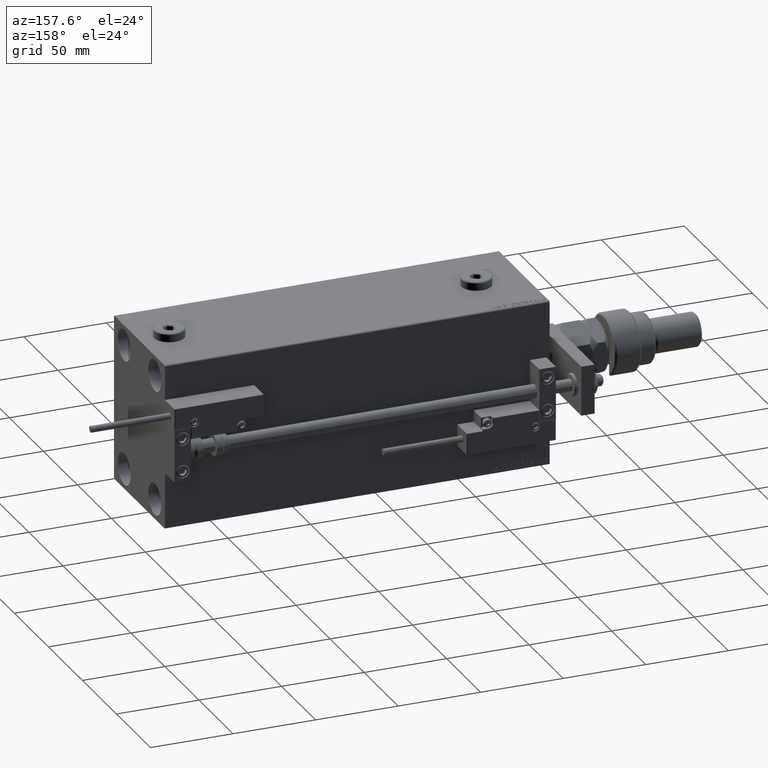
[diagram: clean part render]
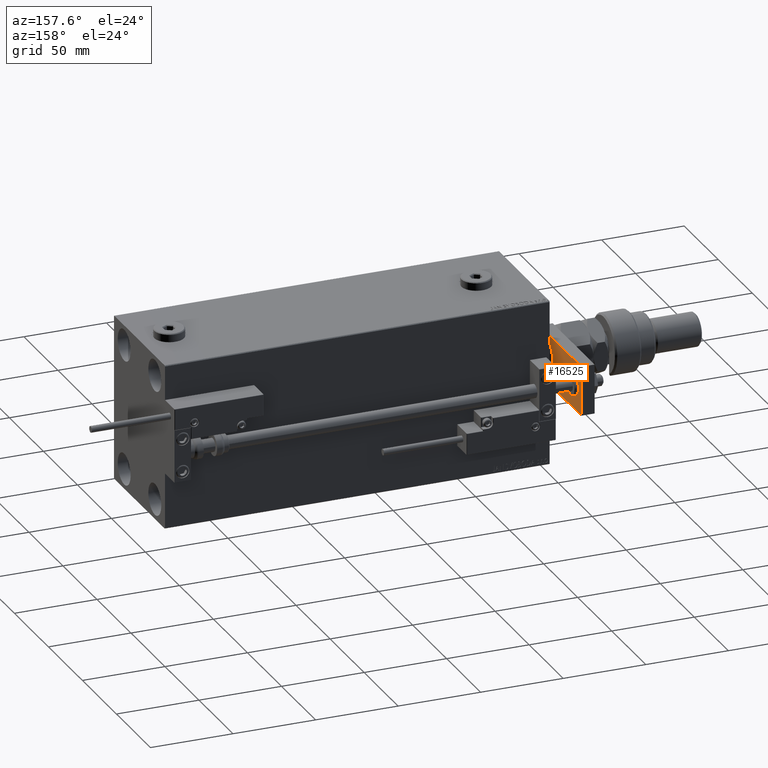
[diagram: same view with one face highlighted and labeled with its STEP entity id]
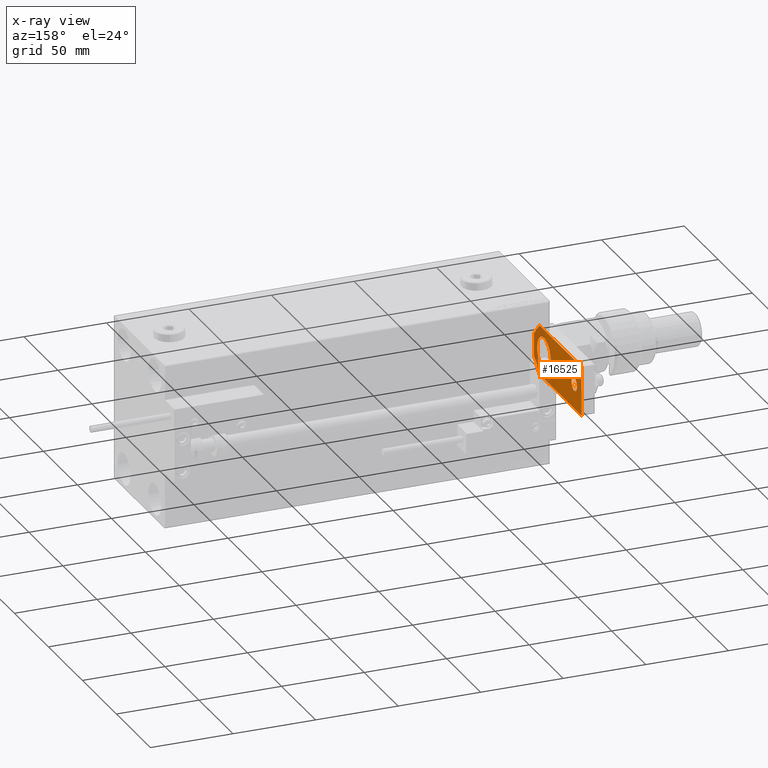
[diagram: x-ray of the same camera — body ghosted, the highlighted face saturated]
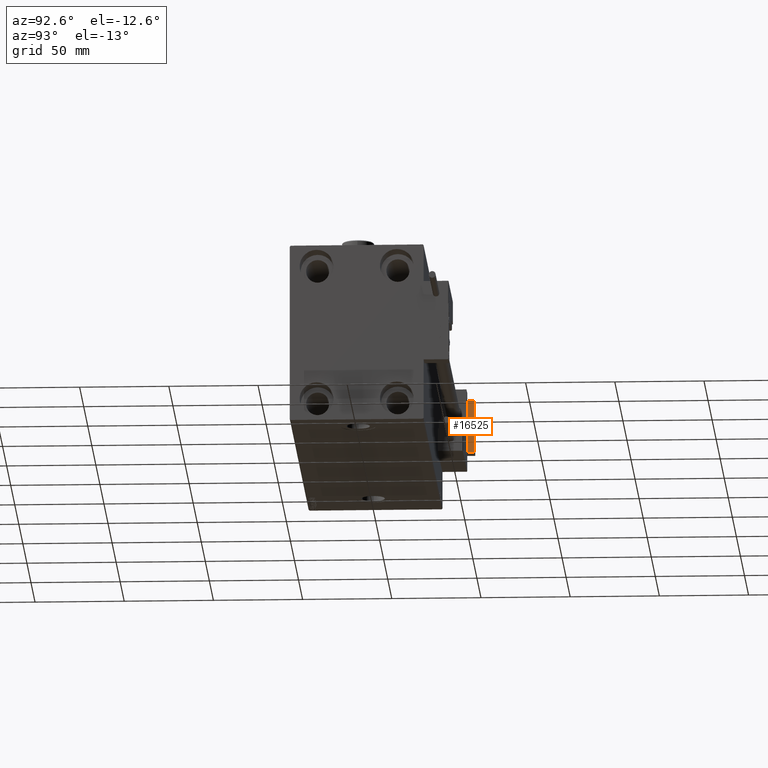
[diagram: same view with one face highlighted and labeled with its STEP entity id]
A machine part, auxiliary view. The second image highlights one B-rep face of the part: STEP entity #16525.
The next image is the same camera in x-ray: the body ghosted, the highlighted face saturated — about 22% of this face is hidden behind the body in this view.
A second angle (auxiliary view) of the same face is appended — the face is thin or edge-on in the first view.
In plain terms, the highlighted planar face has unit normal (-1, 0, 0).
Its self-contained STEP definition (entity closure, byte-faithful):
#328 = EDGE_CURVE ( 'NONE', #48121, #13491, #44241, .T. ) ;
#441 = CIRCLE ( 'NONE', #42696, 10.00000000000000178 ) ;
#972 = ORIENTED_EDGE ( 'NONE', *, *, #5919, .T. ) ;
#1374 = EDGE_CURVE ( 'NONE', #17687, #52299, #5810, .T. ) ;
#1536 = LINE ( 'NONE', #30764, #24697 ) ;
#2108 = CARTESIAN_POINT ( 'NONE',  ( 15.00000000000000000, 70.00000000000000000, 0.000000000000000000 ) ) ;
#2698 = FACE_BOUND ( 'NONE', #50340, .T. ) ;
#2765 = VERTEX_POINT ( 'NONE', #51920 ) ;
#3556 = CARTESIAN_POINT ( 'NONE',  ( -1.432611055310774642E-16, 59.50000000000001421, 0.000000000000000000 ) ) ;
#3947 = EDGE_CURVE ( 'NONE', #13491, #48121, #51385, .T. ) ;
#3962 = CARTESIAN_POINT ( 'NONE',  ( -6.499999999999993783, 0.000000000000000000, 0.000000000000000000 ) ) ;
#4166 = LINE ( 'NONE', #37798, #45336 ) ;
#5068 = CARTESIAN_POINT ( 'NONE',  ( 6.499999999999974243, 0.000000000000000000, 0.000000000000000000 ) ) ;
#5810 = LINE ( 'NONE', #9135, #29349 ) ;
#5919 = EDGE_CURVE ( 'NONE', #2765, #39416, #441, .T. ) ;
#6374 = LINE ( 'NONE', #7200, #44936 ) ;
#6833 = PLANE ( 'NONE',  #31568 ) ;
#6848 = CARTESIAN_POINT ( 'NONE',  ( -10.00000000000000178, 15.00000000000001066, 0.000000000000000000 ) ) ;
#7200 = CARTESIAN_POINT ( 'NONE',  ( -14.99999999999999822, 70.00000000000000000, 0.000000000000000000 ) ) ;
#7386 = ORIENTED_EDGE ( 'NONE', *, *, #3947, .T. ) ;
#7694 = DIRECTION ( 'NONE',  ( 0.000000000000000000, 0.000000000000000000, 1.000000000000000000 ) ) ;
#8123 = VERTEX_POINT ( 'NONE', #24794 ) ;
#8736 = ORIENTED_EDGE ( 'NONE', *, *, #32175, .F. ) ;
#9135 = CARTESIAN_POINT ( 'NONE',  ( 15.00000000000000000, 70.00000000000000000, 0.000000000000000000 ) ) ;
#9422 = VERTEX_POINT ( 'NONE', #23800 ) ;
#9946 = DIRECTION ( 'NONE',  ( -1.000000000000000000, 0.000000000000000000, 0.000000000000000000 ) ) ;
#11428 = AXIS2_PLACEMENT_3D ( 'NONE', #42860, #42594, #21662 ) ;
#11688 = AXIS2_PLACEMENT_3D ( 'NONE', #3556, #7694, #20124 ) ;
#13491 = VERTEX_POINT ( 'NONE', #46397 ) ;
#14927 = ORIENTED_EDGE ( 'NONE', *, *, #36471, .T. ) ;
#15146 = CARTESIAN_POINT ( 'NONE',  ( -15.00000000000000355, 0.000000000000000000, 0.000000000000000000 ) ) ;
#15448 = VECTOR ( 'NONE', #54131, 1000.000000000000000 ) ;
#15670 = DIRECTION ( 'NONE',  ( -0.000000000000000000, 0.000000000000000000, 1.000000000000000000 ) ) ;
#16525 = ADVANCED_FACE ( 'NONE', ( #40450, #27789, #2698 ), #6833, .F. ) ;
#17687 = VERTEX_POINT ( 'NONE', #2108 ) ;
#18545 = CARTESIAN_POINT ( 'NONE',  ( -15.00000000000000355, 8.500000000000028422, 0.000000000000000000 ) ) ;
#18846 = AXIS2_PLACEMENT_3D ( 'NONE', #49266, #49539, #48992 ) ;
#19533 = CARTESIAN_POINT ( 'NONE',  ( 0.000000000000000000, 0.000000000000000000, 0.000000000000000000 ) ) ;
#19829 = EDGE_LOOP ( 'NONE', ( #7386, #39766 ) ) ;
#20124 = DIRECTION ( 'NONE',  ( 1.000000000000000000, 0.000000000000000000, 0.000000000000000000 ) ) ;
#21662 = DIRECTION ( 'NONE',  ( 1.000000000000000000, 0.000000000000000000, 0.000000000000000000 ) ) ;
#23287 = DIRECTION ( 'NONE',  ( 0.000000000000000000, 0.000000000000000000, 1.000000000000000000 ) ) ;
#23800 = CARTESIAN_POINT ( 'NONE',  ( 15.00000000000000355, 8.500000000000007105, 0.000000000000000000 ) ) ;
#24697 = VECTOR ( 'NONE', #48368, 1000.000000000000000 ) ;
#24794 = CARTESIAN_POINT ( 'NONE',  ( -6.499999999999993783, 0.000000000000000000, 0.000000000000000000 ) ) ;
#24853 = EDGE_CURVE ( 'NONE', #52299, #41822, #6374, .T. ) ;
#25024 = ORIENTED_EDGE ( 'NONE', *, *, #51874, .F. ) ;
#26290 = CARTESIAN_POINT ( 'NONE',  ( -14.99999999999999822, 70.00000000000000000, 0.000000000000000000 ) ) ;
#27697 = DIRECTION ( 'NONE',  ( 1.000000000000000000, 0.000000000000000000, 0.000000000000000000 ) ) ;
#27789 = FACE_BOUND ( 'NONE', #19829, .T. ) ;
#29349 = VECTOR ( 'NONE', #9946, 1000.000000000000000 ) ;
#30764 = CARTESIAN_POINT ( 'NONE',  ( 15.00000000000000355, 0.000000000000000000, 0.000000000000000000 ) ) ;
#31568 = AXIS2_PLACEMENT_3D ( 'NONE', #19533, #15670, #37153 ) ;
#32089 = VECTOR ( 'NONE', #48198, 1000.000000000000000 ) ;
#32175 = EDGE_CURVE ( 'NONE', #8123, #48047, #44077, .T. ) ;
#33394 = DIRECTION ( 'NONE',  ( -0.7071067811865483499, -0.7071067811865465735, -0.000000000000000000 ) ) ;
#33752 = CARTESIAN_POINT ( 'NONE',  ( 4.000000000000000888, 59.50000000000001421, 0.000000000000000000 ) ) ;
#36471 = EDGE_CURVE ( 'NONE', #8123, #41822, #50520, .T. ) ;
#36738 = EDGE_CURVE ( 'NONE', #9422, #48047, #4166, .T. ) ;
#37153 = DIRECTION ( 'NONE',  ( 1.000000000000000000, 0.000000000000000000, 0.000000000000000000 ) ) ;
#37798 = CARTESIAN_POINT ( 'NONE',  ( 15.00000000000000355, 8.500000000000007105, 0.000000000000000000 ) ) ;
#39416 = VERTEX_POINT ( 'NONE', #6848 ) ;
#39766 = ORIENTED_EDGE ( 'NONE', *, *, #328, .T. ) ;
#40450 = FACE_OUTER_BOUND ( 'NONE', #43297, .T. ) ;
#41822 = VERTEX_POINT ( 'NONE', #18545 ) ;
#42594 = DIRECTION ( 'NONE',  ( 0.000000000000000000, 0.000000000000000000, 1.000000000000000000 ) ) ;
#42696 = AXIS2_PLACEMENT_3D ( 'NONE', #44498, #23287, #27697 ) ;
#42860 = CARTESIAN_POINT ( 'NONE',  ( -9.629649721936179265E-32, 15.00000000000001066, 0.000000000000000000 ) ) ;
#43297 = EDGE_LOOP ( 'NONE', ( #8736, #14927, #49842, #43709, #25024, #44239 ) ) ;
#43709 = ORIENTED_EDGE ( 'NONE', *, *, #1374, .F. ) ;
#44077 = LINE ( 'NONE', #15146, #32089 ) ;
#44239 = ORIENTED_EDGE ( 'NONE', *, *, #36738, .T. ) ;
#44241 = CIRCLE ( 'NONE', #11688, 4.000000000000000888 ) ;
#44498 = CARTESIAN_POINT ( 'NONE',  ( -9.629649721936179265E-32, 15.00000000000001066, 0.000000000000000000 ) ) ;
#44677 = DIRECTION ( 'NONE',  ( -7.434529182757744162E-17, -1.000000000000000000, 0.000000000000000000 ) ) ;
#44852 = CIRCLE ( 'NONE', #11428, 10.00000000000000178 ) ;
#44936 = VECTOR ( 'NONE', #44677, 1000.000000000000000 ) ;
#45336 = VECTOR ( 'NONE', #33394, 1000.000000000000114 ) ;
#46397 = CARTESIAN_POINT ( 'NONE',  ( -4.000000000000000888, 59.50000000000001421, 0.000000000000000000 ) ) ;
#46996 = EDGE_CURVE ( 'NONE', #39416, #2765, #44852, .T. ) ;
#48047 = VERTEX_POINT ( 'NONE', #5068 ) ;
#48121 = VERTEX_POINT ( 'NONE', #33752 ) ;
#48198 = DIRECTION ( 'NONE',  ( 1.000000000000000000, 0.000000000000000000, 0.000000000000000000 ) ) ;
#48368 = DIRECTION ( 'NONE',  ( -4.956352788505162775E-17, 1.000000000000000000, 0.000000000000000000 ) ) ;
#48992 = DIRECTION ( 'NONE',  ( 1.000000000000000000, 0.000000000000000000, 0.000000000000000000 ) ) ;
#49266 = CARTESIAN_POINT ( 'NONE',  ( -1.432611055310774642E-16, 59.50000000000001421, 0.000000000000000000 ) ) ;
#49492 = ORIENTED_EDGE ( 'NONE', *, *, #46996, .T. ) ;
#49539 = DIRECTION ( 'NONE',  ( 0.000000000000000000, 0.000000000000000000, 1.000000000000000000 ) ) ;
#49842 = ORIENTED_EDGE ( 'NONE', *, *, #24853, .F. ) ;
#50340 = EDGE_LOOP ( 'NONE', ( #49492, #972 ) ) ;
#50520 = LINE ( 'NONE', #3962, #15448 ) ;
#51385 = CIRCLE ( 'NONE', #18846, 4.000000000000000888 ) ;
#51874 = EDGE_CURVE ( 'NONE', #9422, #17687, #1536, .T. ) ;
#51920 = CARTESIAN_POINT ( 'NONE',  ( 10.00000000000000178, 15.00000000000001243, 0.000000000000000000 ) ) ;
#52299 = VERTEX_POINT ( 'NONE', #26290 ) ;
#54131 = DIRECTION ( 'NONE',  ( -0.7071067811865467956, 0.7071067811865483499, -0.000000000000000000 ) ) ;